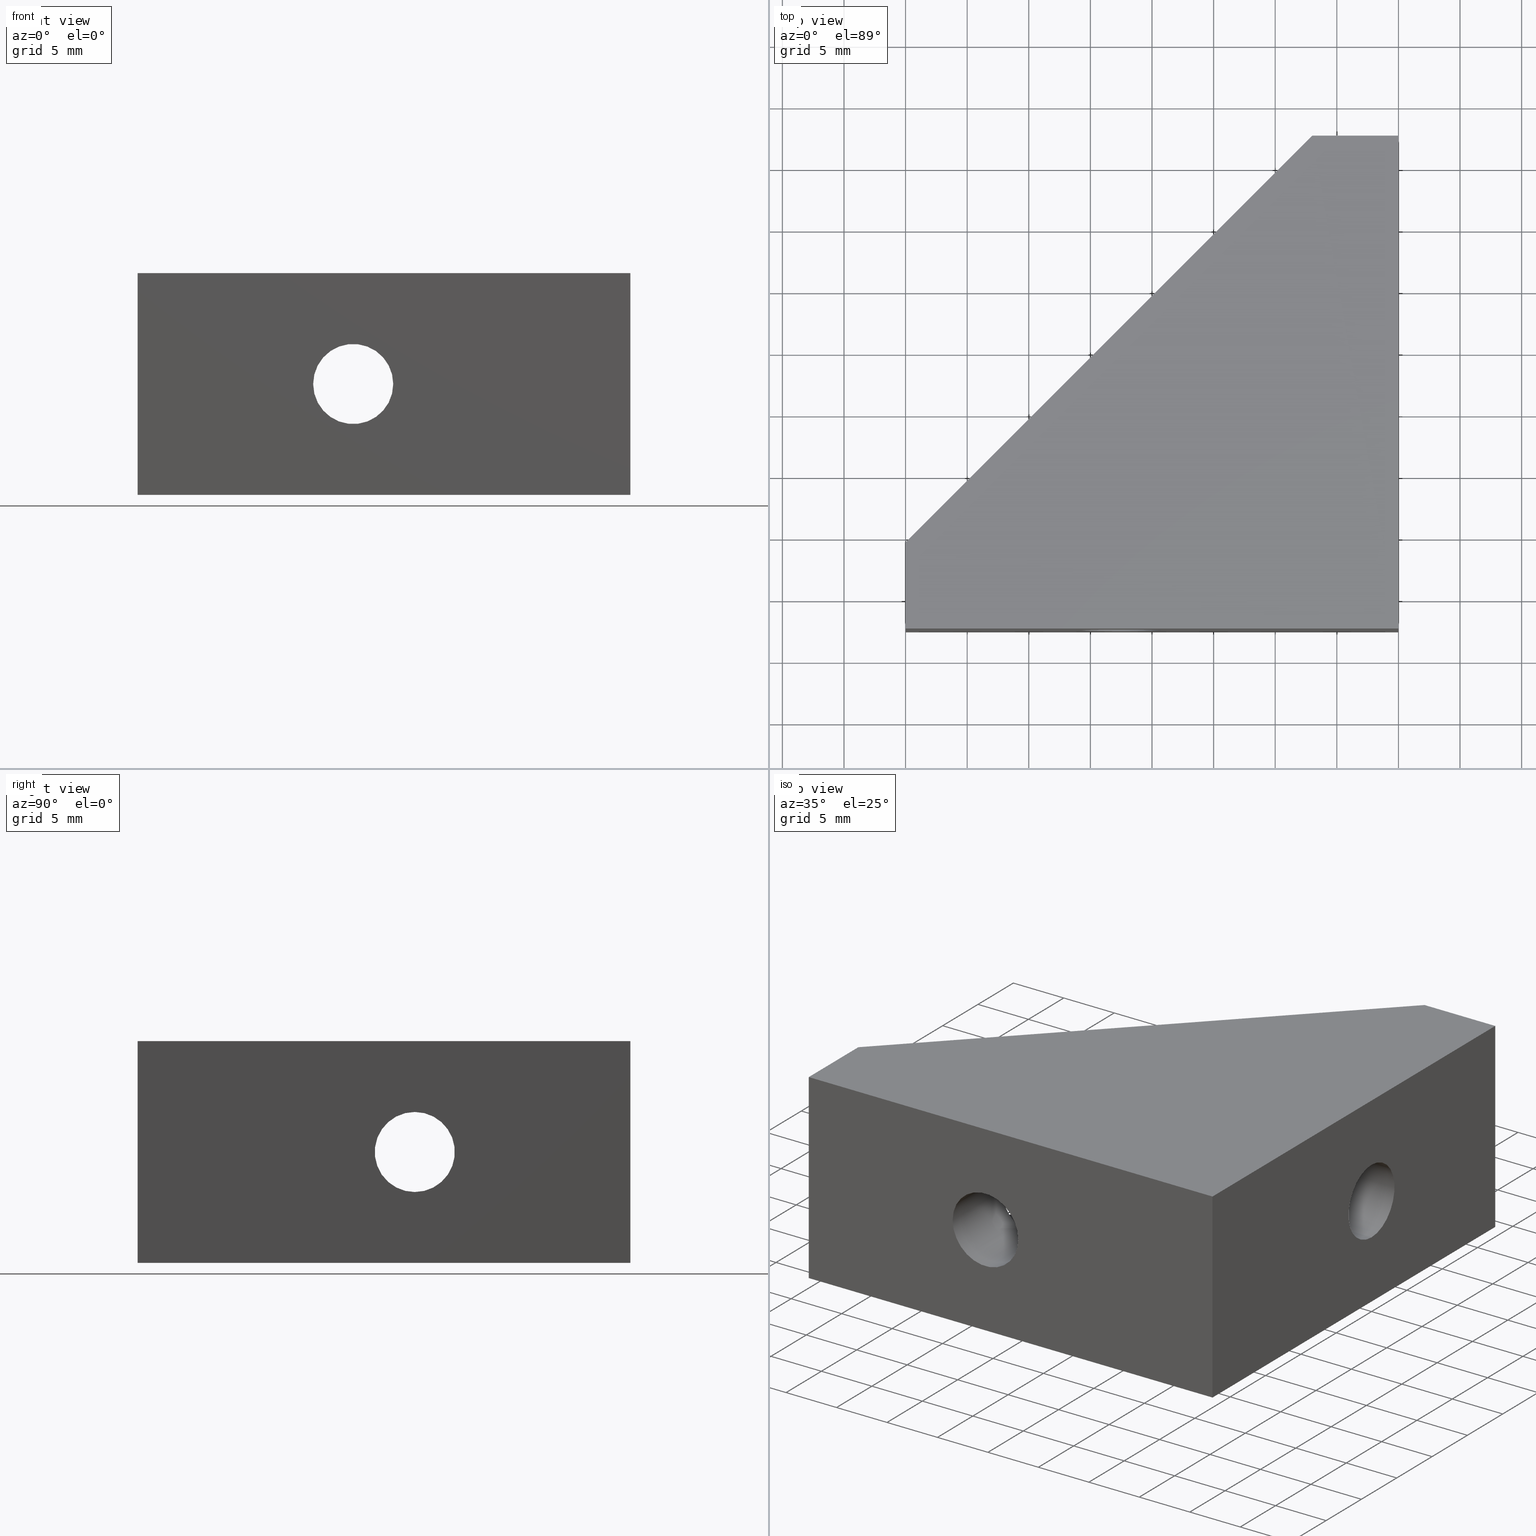
[diagram: canonical four-view strip — front | top / right | iso, engineering-drawing reading convention]
A machine part, canonical four-view strip (front | top / right | iso — engineering-drawing reading convention). The complete STEP part file that produces these views, byte-faithful:
ISO-10303-21;
HEADER;
/* Generated by software containing ST-Developer
 * from STEP Tools, Inc. (www.steptools.com) 
 */

FILE_DESCRIPTION(
/* description */ ('SQUADRETTA 18X40 CON FORO M6'),
/* implementation_level */ '2;1');

FILE_NAME(
/* name */ 
'Q:\\Catalogo\\2_Accessori Dierre\\Per Download Web e catalogo cartace
o\\CATALOGO ELEMENTI ASSEMBLAGGIO\\PAGINA 30\\DSQAL0000004.stp',
/* time_stamp */ '2018-03-07T11:20:36+01:00',
/* author */ ('fzagni'),
/* organization */ (''),
/* preprocessor_version */ 'ST-DEVELOPER v16.1',
/* originating_system */ 'Autodesk Inventor 2016',
/* authorisation */ '');

FILE_SCHEMA (('AUTOMOTIVE_DESIGN { 1 0 10303 214 3 1 1 }'));
ENDSEC;

DATA;
#10=MECHANICAL_DESIGN_GEOMETRIC_PRESENTATION_REPRESENTATION('',(#13),#401);
#11=SHAPE_REPRESENTATION_RELATIONSHIP('SRR','None',#410,#12);
#12=ADVANCED_BREP_SHAPE_REPRESENTATION('',(#14),#400);
#13=STYLED_ITEM('',(#419),#14);
#14=MANIFOLD_SOLID_BREP('None',#249);
#15=LINE('',#347,#41);
#16=LINE('',#349,#42);
#17=LINE('',#351,#43);
#18=LINE('',#352,#44);
#19=LINE('',#355,#45);
#20=LINE('',#357,#46);
#21=LINE('',#358,#47);
#22=LINE('',#362,#48);
#23=LINE('',#363,#49);
#24=LINE('',#364,#50);
#25=LINE('',#365,#51);
#26=LINE('',#369,#52);
#27=LINE('',#371,#53);
#28=LINE('',#373,#54);
#29=LINE('',#374,#55);
#30=LINE('',#377,#56);
#31=LINE('',#378,#57);
#32=LINE('',#380,#58);
#33=LINE('',#381,#59);
#34=LINE('',#385,#60);
#35=LINE('',#387,#61);
#36=LINE('',#389,#62);
#37=LINE('',#390,#63);
#38=LINE('',#392,#64);
#39=LINE('',#393,#65);
#40=LINE('',#396,#66);
#41=VECTOR('',#285,32.9999999998681);
#42=VECTOR('',#286,14.);
#43=VECTOR('',#287,32.9999999998681);
#44=VECTOR('',#288,14.);
#45=VECTOR('',#291,32.9999999998681);
#46=VECTOR('',#292,32.9999999998681);
#47=VECTOR('',#293,14.);
#48=VECTOR('',#296,46.6690475581256);
#49=VECTOR('',#297,2.);
#50=VECTOR('',#298,46.6690475581256);
#51=VECTOR('',#299,2.);
#52=VECTOR('',#304,6.99999999997181);
#53=VECTOR('',#305,39.9999999998399);
#54=VECTOR('',#306,39.9999999998399);
#55=VECTOR('',#307,6.99999999997181);
#56=VECTOR('',#310,2.);
#57=VECTOR('',#311,46.6690475581256);
#58=VECTOR('',#312,2.);
#59=VECTOR('',#313,46.6690475581256);
#60=VECTOR('',#318,6.99999999997181);
#61=VECTOR('',#319,6.99999999997181);
#62=VECTOR('',#320,39.9999999998399);
#63=VECTOR('',#321,39.9999999998399);
#64=VECTOR('',#324,18.);
#65=VECTOR('',#325,18.);
#66=VECTOR('',#330,18.);
#67=PLANE('',#257);
#68=PLANE('',#258);
#69=PLANE('',#259);
#70=PLANE('',#260);
#71=PLANE('',#261);
#72=PLANE('',#262);
#73=PLANE('',#263);
#74=PLANE('',#264);
#75=PLANE('',#265);
#76=PLANE('',#266);
#77=PLANE('',#267);
#78=PLANE('',#268);
#79=FACE_BOUND('',#100,.T.);
#80=FACE_BOUND('',#102,.T.);
#81=FACE_BOUND('',#104,.T.);
#82=FACE_BOUND('',#106,.T.);
#83=FACE_BOUND('',#114,.T.);
#84=FACE_BOUND('',#118,.T.);
#85=FACE_OUTER_BOUND('',#99,.T.);
#86=FACE_OUTER_BOUND('',#101,.T.);
#87=FACE_OUTER_BOUND('',#103,.T.);
#88=FACE_OUTER_BOUND('',#105,.T.);
#89=FACE_OUTER_BOUND('',#107,.T.);
#90=FACE_OUTER_BOUND('',#108,.T.);
#91=FACE_OUTER_BOUND('',#109,.T.);
#92=FACE_OUTER_BOUND('',#110,.T.);
#93=FACE_OUTER_BOUND('',#111,.T.);
#94=FACE_OUTER_BOUND('',#112,.T.);
#95=FACE_OUTER_BOUND('',#113,.T.);
#96=FACE_OUTER_BOUND('',#115,.T.);
#97=FACE_OUTER_BOUND('',#116,.T.);
#98=FACE_OUTER_BOUND('',#117,.T.);
#99=EDGE_LOOP('',(#173));
#100=EDGE_LOOP('',(#174));
#101=EDGE_LOOP('',(#175));
#102=EDGE_LOOP('',(#176));
#103=EDGE_LOOP('',(#177,#178,#179,#180));
#104=EDGE_LOOP('',(#181));
#105=EDGE_LOOP('',(#182,#183,#184,#185));
#106=EDGE_LOOP('',(#186));
#107=EDGE_LOOP('',(#187,#188,#189,#190));
#108=EDGE_LOOP('',(#191,#192,#193));
#109=EDGE_LOOP('',(#194,#195,#196,#197,#198));
#110=EDGE_LOOP('',(#199,#200,#201,#202));
#111=EDGE_LOOP('',(#203,#204,#205));
#112=EDGE_LOOP('',(#206,#207,#208,#209,#210));
#113=EDGE_LOOP('',(#211,#212,#213,#214));
#114=EDGE_LOOP('',(#215));
#115=EDGE_LOOP('',(#216,#217,#218,#219,#220,#221));
#116=EDGE_LOOP('',(#222,#223,#224,#225,#226,#227));
#117=EDGE_LOOP('',(#228,#229,#230,#231));
#118=EDGE_LOOP('',(#232));
#119=CIRCLE('',#252,3.25);
#120=CIRCLE('',#253,3.25);
#121=CIRCLE('',#255,3.25);
#122=CIRCLE('',#256,3.25);
#123=VERTEX_POINT('',#335);
#124=VERTEX_POINT('',#337);
#125=VERTEX_POINT('',#340);
#126=VERTEX_POINT('',#342);
#127=VERTEX_POINT('',#345);
#128=VERTEX_POINT('',#346);
#129=VERTEX_POINT('',#348);
#130=VERTEX_POINT('',#350);
#131=VERTEX_POINT('',#354);
#132=VERTEX_POINT('',#356);
#133=VERTEX_POINT('',#360);
#134=VERTEX_POINT('',#361);
#135=VERTEX_POINT('',#368);
#136=VERTEX_POINT('',#370);
#137=VERTEX_POINT('',#372);
#138=VERTEX_POINT('',#376);
#139=VERTEX_POINT('',#379);
#140=VERTEX_POINT('',#384);
#141=VERTEX_POINT('',#386);
#142=VERTEX_POINT('',#388);
#143=EDGE_CURVE('',#123,#123,#119,.T.);
#144=EDGE_CURVE('',#124,#124,#120,.T.);
#145=EDGE_CURVE('',#125,#125,#121,.T.);
#146=EDGE_CURVE('',#126,#126,#122,.T.);
#147=EDGE_CURVE('',#127,#128,#15,.T.);
#148=EDGE_CURVE('',#128,#129,#16,.T.);
#149=EDGE_CURVE('',#130,#129,#17,.T.);
#150=EDGE_CURVE('',#127,#130,#18,.T.);
#151=EDGE_CURVE('',#131,#129,#19,.T.);
#152=EDGE_CURVE('',#132,#128,#20,.T.);
#153=EDGE_CURVE('',#132,#131,#21,.T.);
#154=EDGE_CURVE('',#133,#134,#22,.T.);
#155=EDGE_CURVE('',#130,#133,#23,.T.);
#156=EDGE_CURVE('',#130,#131,#24,.T.);
#157=EDGE_CURVE('',#131,#134,#25,.T.);
#158=EDGE_CURVE('',#134,#135,#26,.T.);
#159=EDGE_CURVE('',#135,#136,#27,.T.);
#160=EDGE_CURVE('',#136,#137,#28,.T.);
#161=EDGE_CURVE('',#137,#133,#29,.T.);
#162=EDGE_CURVE('',#138,#132,#30,.T.);
#163=EDGE_CURVE('',#132,#127,#31,.T.);
#164=EDGE_CURVE('',#139,#127,#32,.T.);
#165=EDGE_CURVE('',#138,#139,#33,.T.);
#166=EDGE_CURVE('',#138,#140,#34,.T.);
#167=EDGE_CURVE('',#141,#139,#35,.T.);
#168=EDGE_CURVE('',#142,#141,#36,.T.);
#169=EDGE_CURVE('',#140,#142,#37,.T.);
#170=EDGE_CURVE('',#142,#136,#38,.T.);
#171=EDGE_CURVE('',#141,#137,#39,.T.);
#172=EDGE_CURVE('',#140,#135,#40,.T.);
#173=ORIENTED_EDGE('',*,*,#143,.F.);
#174=ORIENTED_EDGE('',*,*,#144,.F.);
#175=ORIENTED_EDGE('',*,*,#145,.F.);
#176=ORIENTED_EDGE('',*,*,#146,.F.);
#177=ORIENTED_EDGE('',*,*,#147,.T.);
#178=ORIENTED_EDGE('',*,*,#148,.T.);
#179=ORIENTED_EDGE('',*,*,#149,.F.);
#180=ORIENTED_EDGE('',*,*,#150,.F.);
#181=ORIENTED_EDGE('',*,*,#143,.T.);
#182=ORIENTED_EDGE('',*,*,#151,.T.);
#183=ORIENTED_EDGE('',*,*,#148,.F.);
#184=ORIENTED_EDGE('',*,*,#152,.F.);
#185=ORIENTED_EDGE('',*,*,#153,.T.);
#186=ORIENTED_EDGE('',*,*,#145,.T.);
#187=ORIENTED_EDGE('',*,*,#154,.F.);
#188=ORIENTED_EDGE('',*,*,#155,.F.);
#189=ORIENTED_EDGE('',*,*,#156,.T.);
#190=ORIENTED_EDGE('',*,*,#157,.T.);
#191=ORIENTED_EDGE('',*,*,#149,.T.);
#192=ORIENTED_EDGE('',*,*,#151,.F.);
#193=ORIENTED_EDGE('',*,*,#156,.F.);
#194=ORIENTED_EDGE('',*,*,#154,.T.);
#195=ORIENTED_EDGE('',*,*,#158,.T.);
#196=ORIENTED_EDGE('',*,*,#159,.T.);
#197=ORIENTED_EDGE('',*,*,#160,.T.);
#198=ORIENTED_EDGE('',*,*,#161,.T.);
#199=ORIENTED_EDGE('',*,*,#162,.T.);
#200=ORIENTED_EDGE('',*,*,#163,.T.);
#201=ORIENTED_EDGE('',*,*,#164,.F.);
#202=ORIENTED_EDGE('',*,*,#165,.F.);
#203=ORIENTED_EDGE('',*,*,#152,.T.);
#204=ORIENTED_EDGE('',*,*,#147,.F.);
#205=ORIENTED_EDGE('',*,*,#163,.F.);
#206=ORIENTED_EDGE('',*,*,#166,.F.);
#207=ORIENTED_EDGE('',*,*,#165,.T.);
#208=ORIENTED_EDGE('',*,*,#167,.F.);
#209=ORIENTED_EDGE('',*,*,#168,.F.);
#210=ORIENTED_EDGE('',*,*,#169,.F.);
#211=ORIENTED_EDGE('',*,*,#160,.F.);
#212=ORIENTED_EDGE('',*,*,#170,.F.);
#213=ORIENTED_EDGE('',*,*,#168,.T.);
#214=ORIENTED_EDGE('',*,*,#171,.T.);
#215=ORIENTED_EDGE('',*,*,#144,.T.);
#216=ORIENTED_EDGE('',*,*,#155,.T.);
#217=ORIENTED_EDGE('',*,*,#161,.F.);
#218=ORIENTED_EDGE('',*,*,#171,.F.);
#219=ORIENTED_EDGE('',*,*,#167,.T.);
#220=ORIENTED_EDGE('',*,*,#164,.T.);
#221=ORIENTED_EDGE('',*,*,#150,.T.);
#222=ORIENTED_EDGE('',*,*,#158,.F.);
#223=ORIENTED_EDGE('',*,*,#157,.F.);
#224=ORIENTED_EDGE('',*,*,#153,.F.);
#225=ORIENTED_EDGE('',*,*,#162,.F.);
#226=ORIENTED_EDGE('',*,*,#166,.T.);
#227=ORIENTED_EDGE('',*,*,#172,.T.);
#228=ORIENTED_EDGE('',*,*,#169,.T.);
#229=ORIENTED_EDGE('',*,*,#170,.T.);
#230=ORIENTED_EDGE('',*,*,#159,.F.);
#231=ORIENTED_EDGE('',*,*,#172,.F.);
#232=ORIENTED_EDGE('',*,*,#146,.T.);
#233=CYLINDRICAL_SURFACE('',#251,3.25);
#234=CYLINDRICAL_SURFACE('',#254,3.25);
#235=ADVANCED_FACE('',(#85,#79),#233,.F.);
#236=ADVANCED_FACE('',(#86,#80),#234,.F.);
#237=ADVANCED_FACE('',(#87,#81),#67,.T.);
#238=ADVANCED_FACE('',(#88,#82),#68,.T.);
#239=ADVANCED_FACE('',(#89),#69,.F.);
#240=ADVANCED_FACE('',(#90),#70,.F.);
#241=ADVANCED_FACE('',(#91),#71,.T.);
#242=ADVANCED_FACE('',(#92),#72,.F.);
#243=ADVANCED_FACE('',(#93),#73,.F.);
#244=ADVANCED_FACE('',(#94),#74,.F.);
#245=ADVANCED_FACE('',(#95,#83),#75,.T.);
#246=ADVANCED_FACE('',(#96),#76,.T.);
#247=ADVANCED_FACE('',(#97),#77,.T.);
#248=ADVANCED_FACE('',(#98,#84),#78,.T.);
#249=CLOSED_SHELL('',(#235,#236,#237,#238,#239,#240,#241,#242,#243,#244,
#245,#246,#247,#248));
#250=AXIS2_PLACEMENT_3D('placement',#333,#269,#270);
#251=AXIS2_PLACEMENT_3D('',#334,#271,#272);
#252=AXIS2_PLACEMENT_3D('',#336,#273,#274);
#253=AXIS2_PLACEMENT_3D('',#338,#275,#276);
#254=AXIS2_PLACEMENT_3D('',#339,#277,#278);
#255=AXIS2_PLACEMENT_3D('',#341,#279,#280);
#256=AXIS2_PLACEMENT_3D('',#343,#281,#282);
#257=AXIS2_PLACEMENT_3D('',#344,#283,#284);
#258=AXIS2_PLACEMENT_3D('',#353,#289,#290);
#259=AXIS2_PLACEMENT_3D('',#359,#294,#295);
#260=AXIS2_PLACEMENT_3D('',#366,#300,#301);
#261=AXIS2_PLACEMENT_3D('',#367,#302,#303);
#262=AXIS2_PLACEMENT_3D('',#375,#308,#309);
#263=AXIS2_PLACEMENT_3D('',#382,#314,#315);
#264=AXIS2_PLACEMENT_3D('',#383,#316,#317);
#265=AXIS2_PLACEMENT_3D('',#391,#322,#323);
#266=AXIS2_PLACEMENT_3D('',#394,#326,#327);
#267=AXIS2_PLACEMENT_3D('',#395,#328,#329);
#268=AXIS2_PLACEMENT_3D('',#397,#331,#332);
#269=DIRECTION('axis',(0.,0.,1.));
#270=DIRECTION('refdir',(1.,0.,0.));
#271=DIRECTION('center_axis',(-1.,0.,0.));
#272=DIRECTION('ref_axis',(0.,0.,1.));
#273=DIRECTION('center_axis',(1.,0.,0.));
#274=DIRECTION('ref_axis',(0.,0.,1.));
#275=DIRECTION('center_axis',(-1.,0.,0.));
#276=DIRECTION('ref_axis',(0.,0.,1.));
#277=DIRECTION('center_axis',(0.,1.,0.));
#278=DIRECTION('ref_axis',(-1.,0.,0.));
#279=DIRECTION('center_axis',(0.,-1.,0.));
#280=DIRECTION('ref_axis',(-1.,0.,0.));
#281=DIRECTION('center_axis',(0.,1.,0.));
#282=DIRECTION('ref_axis',(-1.,0.,0.));
#283=DIRECTION('center_axis',(-1.,0.,0.));
#284=DIRECTION('ref_axis',(0.,0.,1.));
#285=DIRECTION('',(0.,-1.,0.));
#286=DIRECTION('',(0.,0.,1.));
#287=DIRECTION('',(0.,-1.,0.));
#288=DIRECTION('',(0.,0.,1.));
#289=DIRECTION('center_axis',(0.,1.,0.));
#290=DIRECTION('ref_axis',(0.,0.,1.));
#291=DIRECTION('',(1.,0.,0.));
#292=DIRECTION('',(1.,0.,0.));
#293=DIRECTION('',(0.,0.,1.));
#294=DIRECTION('center_axis',(0.707106781186548,-0.707106781186548,0.));
#295=DIRECTION('ref_axis',(0.,0.,-1.));
#296=DIRECTION('',(-0.707106781186548,-0.707106781186548,0.));
#297=DIRECTION('',(0.,0.,1.));
#298=DIRECTION('',(-0.707106781186548,-0.707106781186548,0.));
#299=DIRECTION('',(0.,0.,1.));
#300=DIRECTION('center_axis',(0.,0.,1.));
#301=DIRECTION('ref_axis',(1.,0.,0.));
#302=DIRECTION('center_axis',(0.,0.,1.));
#303=DIRECTION('ref_axis',(1.,0.,0.));
#304=DIRECTION('',(0.,-1.,0.));
#305=DIRECTION('',(1.,0.,0.));
#306=DIRECTION('',(0.,1.,0.));
#307=DIRECTION('',(-1.,0.,0.));
#308=DIRECTION('center_axis',(0.707106781186548,-0.707106781186548,0.));
#309=DIRECTION('ref_axis',(0.,0.,-1.));
#310=DIRECTION('',(0.,0.,1.));
#311=DIRECTION('',(0.707106781186548,0.707106781186548,0.));
#312=DIRECTION('',(0.,0.,1.));
#313=DIRECTION('',(0.707106781186548,0.707106781186548,0.));
#314=DIRECTION('center_axis',(0.,0.,-1.));
#315=DIRECTION('ref_axis',(-1.,0.,0.));
#316=DIRECTION('center_axis',(0.,0.,1.));
#317=DIRECTION('ref_axis',(1.,0.,0.));
#318=DIRECTION('',(0.,-1.,0.));
#319=DIRECTION('',(-1.,0.,0.));
#320=DIRECTION('',(0.,1.,0.));
#321=DIRECTION('',(1.,0.,0.));
#322=DIRECTION('center_axis',(1.,0.,0.));
#323=DIRECTION('ref_axis',(0.,0.,-1.));
#324=DIRECTION('',(0.,0.,1.));
#325=DIRECTION('',(0.,0.,1.));
#326=DIRECTION('center_axis',(0.,1.,0.));
#327=DIRECTION('ref_axis',(0.,0.,1.));
#328=DIRECTION('center_axis',(-1.,0.,0.));
#329=DIRECTION('ref_axis',(0.,0.,1.));
#330=DIRECTION('',(0.,0.,1.));
#331=DIRECTION('center_axis',(0.,-1.,0.));
#332=DIRECTION('ref_axis',(0.,0.,-1.));
#333=CARTESIAN_POINT('',(0.,0.,0.));
#334=CARTESIAN_POINT('Origin',(0.,0.,0.));
#335=CARTESIAN_POINT('',(-7.,3.9801020972289E-16,-3.25));
#336=CARTESIAN_POINT('Origin',(-7.,0.,0.));
#337=CARTESIAN_POINT('',(0.,3.9801020972289E-16,-3.25));
#338=CARTESIAN_POINT('Origin',(0.,0.,0.));
#339=CARTESIAN_POINT('Origin',(-22.4999999999268,-22.49999999991,3.59245966308208E-11));
#340=CARTESIAN_POINT('',(-19.2499999999268,-15.49999999991,3.59249946410305E-11));
#341=CARTESIAN_POINT('Origin',(-22.4999999999268,-15.49999999991,3.59245966308208E-11));
#342=CARTESIAN_POINT('',(-19.2499999999268,-22.49999999991,3.59249946410305E-11));
#343=CARTESIAN_POINT('Origin',(-22.4999999999268,-22.49999999991,3.59245966308208E-11));
#344=CARTESIAN_POINT('Origin',(-6.99999999997181,17.49999999993,-8.99999999996408));
#345=CARTESIAN_POINT('',(-6.99999999997181,17.49999999993,-6.99999999996408));
#346=CARTESIAN_POINT('',(-6.99999999997181,-15.4999999999382,-6.99999999996408));
#347=CARTESIAN_POINT('',(-6.99999999997181,17.49999999993,-6.99999999996408));
#348=CARTESIAN_POINT('',(-6.99999999997181,-15.4999999999382,7.00000000003592));
#349=CARTESIAN_POINT('',(-6.99999999997181,-15.4999999999382,-6.99999999996408));
#350=CARTESIAN_POINT('',(-6.99999999997181,17.49999999993,7.00000000003592));
#351=CARTESIAN_POINT('',(-6.99999999997181,17.49999999993,7.00000000003592));
#352=CARTESIAN_POINT('',(-6.99999999997181,17.49999999993,-6.99999999996408));
#353=CARTESIAN_POINT('Origin',(-6.99999999997181,-15.4999999999382,-8.99999999996408));
#354=CARTESIAN_POINT('',(-39.9999999998399,-15.4999999999382,7.00000000003592));
#355=CARTESIAN_POINT('',(-39.9999999998399,-15.4999999999382,7.00000000003592));
#356=CARTESIAN_POINT('',(-39.9999999998399,-15.4999999999382,-6.99999999996408));
#357=CARTESIAN_POINT('',(-39.9999999998399,-15.4999999999382,-6.99999999996408));
#358=CARTESIAN_POINT('',(-39.9999999998399,-15.4999999999382,-6.99999999996408));
#359=CARTESIAN_POINT('Origin',(-6.99999999997181,17.49999999993,9.00000000003593));
#360=CARTESIAN_POINT('',(-6.99999999997181,17.49999999993,9.00000000003593));
#361=CARTESIAN_POINT('',(-39.9999999998399,-15.4999999999382,9.00000000003593));
#362=CARTESIAN_POINT('',(-6.99999999997181,17.49999999993,9.00000000003593));
#363=CARTESIAN_POINT('',(-6.99999999997181,17.49999999993,7.00000000003592));
#364=CARTESIAN_POINT('',(-6.99999999997181,17.49999999993,7.00000000003592));
#365=CARTESIAN_POINT('',(-39.9999999998399,-15.4999999999382,7.00000000003592));
#366=CARTESIAN_POINT('Origin',(-44.0000047242893,-26.5000047243593,7.00000000003592));
#367=CARTESIAN_POINT('Origin',(-40.0000433069272,-22.5000433069972,9.00000000003593));
#368=CARTESIAN_POINT('',(-39.9999999998399,-22.49999999991,9.00000000003593));
#369=CARTESIAN_POINT('',(-39.9999999998399,-15.4999999999382,9.00000000003593));
#370=CARTESIAN_POINT('',(0.,-22.49999999991,9.00000000003593));
#371=CARTESIAN_POINT('',(-39.9999999998399,-22.49999999991,9.00000000003593));
#372=CARTESIAN_POINT('',(0.,17.49999999993,9.00000000003593));
#373=CARTESIAN_POINT('',(0.,-22.49999999991,9.00000000003593));
#374=CARTESIAN_POINT('',(0.,17.49999999993,9.00000000003593));
#375=CARTESIAN_POINT('Origin',(-39.9999999998399,-15.4999999999382,-8.99999999996408));
#376=CARTESIAN_POINT('',(-39.9999999998399,-15.4999999999382,-8.99999999996408));
#377=CARTESIAN_POINT('',(-39.9999999998399,-15.4999999999382,-8.99999999996408));
#378=CARTESIAN_POINT('',(-39.9999999998399,-15.4999999999382,-6.99999999996408));
#379=CARTESIAN_POINT('',(-6.99999999997181,17.49999999993,-8.99999999996408));
#380=CARTESIAN_POINT('',(-6.99999999997181,17.49999999993,-8.99999999996408));
#381=CARTESIAN_POINT('',(-39.9999999998399,-15.4999999999382,-8.99999999996408));
#382=CARTESIAN_POINT('Origin',(-44.0000047242893,21.5000047243793,-6.99999999996408));
#383=CARTESIAN_POINT('Origin',(-40.0000433069272,-22.5000433069972,-8.99999999996408));
#384=CARTESIAN_POINT('',(-39.9999999998399,-22.49999999991,-8.99999999996408));
#385=CARTESIAN_POINT('',(-39.9999999998399,-15.4999999999382,-8.99999999996408));
#386=CARTESIAN_POINT('',(0.,17.49999999993,-8.99999999996408));
#387=CARTESIAN_POINT('',(0.,17.49999999993,-8.99999999996408));
#388=CARTESIAN_POINT('',(0.,-22.49999999991,-8.99999999996408));
#389=CARTESIAN_POINT('',(0.,-22.49999999991,-8.99999999996408));
#390=CARTESIAN_POINT('',(-39.9999999998399,-22.49999999991,-8.99999999996408));
#391=CARTESIAN_POINT('Origin',(0.,-22.5000433069972,-9.00004330705133));
#392=CARTESIAN_POINT('',(0.,-22.49999999991,-8.99999999996408));
#393=CARTESIAN_POINT('',(0.,17.49999999993,-8.99999999996408));
#394=CARTESIAN_POINT('Origin',(4.3307087253E-5,17.49999999993,-9.00004330705133));
#395=CARTESIAN_POINT('Origin',(-39.9999999998399,-15.4999566928509,-9.00004330705133));
#396=CARTESIAN_POINT('',(-39.9999999998399,-22.49999999991,-8.99999999996408));
#397=CARTESIAN_POINT('Origin',(-40.0000433069272,-22.49999999991,-9.00004330705133));
#398=UNCERTAINTY_MEASURE_WITH_UNIT(LENGTH_MEASURE(0.01),#402,
'DISTANCE_ACCURACY_VALUE',
'Maximum model space distance between geometric entities at asserted c
onnectivities');
#399=UNCERTAINTY_MEASURE_WITH_UNIT(LENGTH_MEASURE(1.E-6),#402,
'DISTANCE_ACCURACY_VALUE',
'Maximum model space distance between geometric entities at asserted c
onnectivities');
#400=(
GEOMETRIC_REPRESENTATION_CONTEXT(3)
GLOBAL_UNCERTAINTY_ASSIGNED_CONTEXT((#398))
GLOBAL_UNIT_ASSIGNED_CONTEXT((#402,#405,#403))
REPRESENTATION_CONTEXT('','3D')
);
#401=(
GEOMETRIC_REPRESENTATION_CONTEXT(3)
GLOBAL_UNCERTAINTY_ASSIGNED_CONTEXT((#399))
GLOBAL_UNIT_ASSIGNED_CONTEXT((#402,#405,#403))
REPRESENTATION_CONTEXT('','3D')
);
#402=(
LENGTH_UNIT()
NAMED_UNIT(*)
SI_UNIT(.MILLI.,.METRE.)
);
#403=(
NAMED_UNIT(*)
SI_UNIT($,.STERADIAN.)
SOLID_ANGLE_UNIT()
);
#404=DIMENSIONAL_EXPONENTS(0.,0.,0.,0.,0.,0.,0.);
#405=(
CONVERSION_BASED_UNIT('degree',#407)
NAMED_UNIT(#404)
PLANE_ANGLE_UNIT()
);
#406=(
NAMED_UNIT(*)
PLANE_ANGLE_UNIT()
SI_UNIT($,.RADIAN.)
);
#407=PLANE_ANGLE_MEASURE_WITH_UNIT(PLANE_ANGLE_MEASURE(0.01745329252),#406);
#408=SHAPE_DEFINITION_REPRESENTATION(#409,#410);
#409=PRODUCT_DEFINITION_SHAPE('',$,#412);
#410=SHAPE_REPRESENTATION('',(#250),#400);
#411=PRODUCT_DEFINITION_CONTEXT('part definition',#416,'design');
#412=PRODUCT_DEFINITION('959530007538','959530007538',#413,#411);
#413=PRODUCT_DEFINITION_FORMATION('','A',#418);
#414=PRODUCT_RELATED_PRODUCT_CATEGORY('959530007538','959530007538',(#418));
#415=APPLICATION_PROTOCOL_DEFINITION('international standard',
'automotive_design',2009,#416);
#416=APPLICATION_CONTEXT(
'Core Data for Automotive Mechanical Design Process');
#417=PRODUCT_CONTEXT('part definition',#416,'mechanical');
#418=PRODUCT('959530007538','959530007538',$,(#417));
#419=PRESENTATION_STYLE_ASSIGNMENT((#420));
#420=SURFACE_STYLE_USAGE(.BOTH.,#421);
#421=SURFACE_SIDE_STYLE('',(#422));
#422=SURFACE_STYLE_FILL_AREA(#423);
#423=FILL_AREA_STYLE('',(#424));
#424=FILL_AREA_STYLE_COLOUR('',#425);
#425=COLOUR_RGB('',0.745098039215686,0.752941176470588,0.756862745098039);
ENDSEC;
END-ISO-10303-21;
